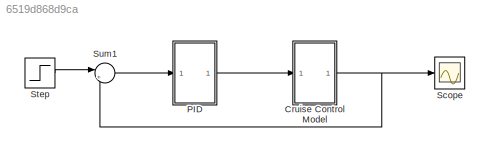
MODEL slx_6519d868d9ca
KIND model
CONFIG AbsTol = auto
CONFIG EnableMultiTasking = off
CONFIG FixedStep = auto
CONFIG MaxStep = auto
CONFIG MinStep = auto
CONFIG RelTol = 1e-3
CONFIG SampleTimeConstraint = Unconstrained
CONFIG Solver = VariableStepAuto
CONFIG SolverName = VariableStepAuto
CONFIG StartTime = 0.0
CONFIG StopTime = 120
BLOCK [Scope]  Scope 
  Floating = off
  NumInputPorts = 1
  Ports = [1]
  ScopeSpecificationString = Simulink.scopes.TimeScopeBlockCfg('CurrentConfiguration', extmgr.ConfigurationSet(extmgr.Configuration('Core','General UI',true),extmgr.Configuration('Core','Source UI',true),extmgr.Configuration('Sources','WiredSimulink',true),extmgr.Configuration('Visuals','Time Domain',true,'SerializedDisplays',{struct('MinYLimReal','-66.28357','MaxYLimReal','596.55217','YLabelReal','','MinYLimMag','0.00000','M...<+1377ch>
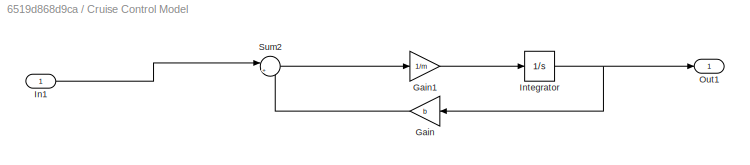
BLOCK [SubSystem] Cruise Control Model
  Ports = [1, 1]
  RequestExecContextInheritance = off
BLOCK [Gain] Cruise Control Model/Gain
  Gain = b
  NameLocation = top
BLOCK [Gain] Cruise Control Model/Gain1
  Gain = 1/m
BLOCK [Inport] Cruise Control Model/In1
BLOCK [Integrator] Cruise Control Model/Integrator
  Ports = [1, 1]
BLOCK [Outport] Cruise Control Model/Out1
BLOCK [Sum] Cruise Control Model/Sum2
  Inputs = |+-
  Ports = [2, 1]
BLOCK [ModelReference] PID
  ModelNameDialog = Subsystem0
  ModelReferenceVersion = 1.13
  Ports = [1, 1]
BLOCK [Step] Step 
  After = u
  SampleTime = 0
  Time = 0
BLOCK [Sum] Sum1
  Inputs = |+-
  Ports = [2, 1]
LINE Cruise Control Model/Gain1:1 -> Cruise Control Model/Integrator:1
LINE Cruise Control Model/Gain:1 -> Cruise Control Model/Sum2:2
LINE Cruise Control Model/In1:1 -> Cruise Control Model/Sum2:1
NET Cruise Control Model/Integrator:1 -> Cruise Control Model/Gain:1, Cruise Control Model/Out1:1
LINE Cruise Control Model/Sum2:1 -> Cruise Control Model/Gain1:1
NET Cruise Control Model:1 ->  Scope :1, Sum1:2
LINE PID:1 -> Cruise Control Model:1
LINE Step :1 -> Sum1:1
LINE Sum1:1 -> PID:1
note: NET lines group one-source signal fan-out (src -> all destinations, sorted); 1:1 wires keep LINE
